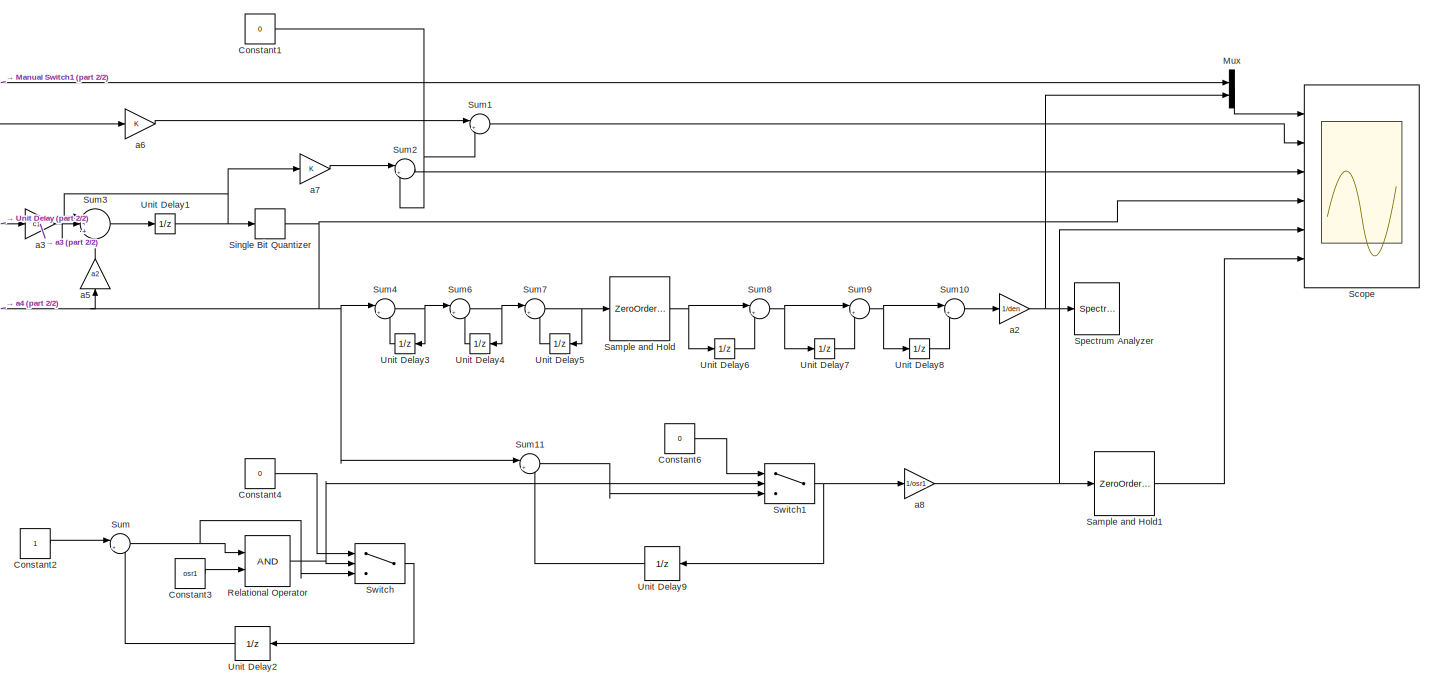
[diagram: root canvas - part 1/2, most of the canvas]
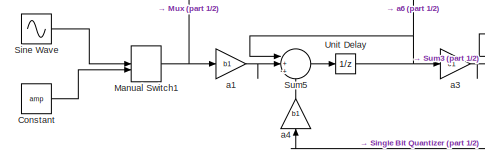
[diagram: root canvas - part 2/2, middle left region]
MODEL slx_04961e303b5b
KIND model
BLOCK [Constant] Constant
  SampleTime = 1/fs
  Value = amp
BLOCK [Constant] Constant1
  SampleTime = 1/fs
  Value = 0
BLOCK [Constant] Constant2
  SampleTime = 1/fs
BLOCK [Constant] Constant3
  SampleTime = 1/fs
  Value = osr1
BLOCK [Constant] Constant4
  SampleTime = 1/fs
  Value = 0
BLOCK [Constant] Constant6
  SampleTime = 1/fs
  Value = 0
BLOCK [ManualSwitch] Manual Switch1
  CurrentSetting = 0
BLOCK [Mux] Mux
  DisplayOption = bar
  Inputs = 2
  Ports = [2, 1]
BLOCK [RelationalOperator] Relational Operator
  InputSameDT = off
  OutDataTypeStr = boolean
  Ports = [2, 1]
  SampleTime = 1/fs
BLOCK [ZeroOrderHold] Sample and Hold
  SampleTime = osr/fs
BLOCK [ZeroOrderHold] Sample and Hold1
  SampleTime = osr1/fs
BLOCK [Scope] Scope
  DataFormat = StructureWithTime
  Floating = off
  LimitDataPoints = off
  MaxDataPoints = 20000
  NumInputPorts = 6
  Ports = [6]
  SampleTime = 0
  ShowLegends = off
  TimeRange = 0.09
  YMax = 0.01001~0.6~0.2~1.5~4.5e-08~1.5
  YMin = 0.00999~-0.2~-0.2~-1.5~2.5e-08~-0.5
BLOCK [Sin] Sine Wave
  Amplitude = amp
  Frequency = 2*pi*fin
  Ports = [0, 1]
  SampleTime = 1/fs
BLOCK [Signum] Single Bit Quantizer
  SampleTime = 1/fs
BLOCK [SpectrumAnalyzer] Spectrum Analyzer
  CloseFcn = scopeextensions.ScopeBlock.callback(gcbh, 'onBlockClose');
  CopyFcn = scopeextensions.ScopeBlock.onCoreBlockCopy(gcbh);
  DeleteFcn = scopeextensions.ScopeBlock.callback(gcbh, 'onBlockDelete');
  DestroyFcn = scopeextensions.ScopeBlock.onBlockDestroy(gcbh)
  NameChangeFcn = scopeextensions.ScopeBlock.callback(gcbh, 'onBlockRename');
  Ports = [1]
  PreDeleteFcn = scopeextensions.ScopeBlock.callback(gcbh, 'onBlockPreDelete');
  PreSaveFcn = scopeextensions.ScopeBlock.callback(gcbh, 'onModelSave');
BLOCK [Sum] Sum
  IconShape = round
  InputSameDT = off
  Inputs = |++
  OutDataTypeStr = Inherit: Inherit via internal rule
  Ports = [2, 1]
  SampleTime = 1/fs
  SaturateOnIntegerOverflow = off
BLOCK [Sum] Sum1
  AccumDataTypeStr = double
  IconShape = round
  InputSameDT = off
  Inputs = |++
  OutDataTypeStr = Inherit: Inherit via internal rule
  Ports = [2, 1]
  SampleTime = 1/fs
  SaturateOnIntegerOverflow = off
BLOCK [Sum] Sum10
  AccumDataTypeStr = double
  IconShape = round
  InputSameDT = off
  Inputs = |+-
  OutDataTypeStr = Inherit: Inherit via internal rule
  Ports = [2, 1]
  SampleTime = osr/fs
  SaturateOnIntegerOverflow = off
BLOCK [Sum] Sum11
  IconShape = round
  InputSameDT = off
  Inputs = |++
  OutDataTypeStr = Inherit: Inherit via internal rule
  Ports = [2, 1]
  SampleTime = 1/fs
  SaturateOnIntegerOverflow = off
BLOCK [Sum] Sum2
  AccumDataTypeStr = double
  IconShape = round
  InputSameDT = off
  Inputs = |++
  OutDataTypeStr = Inherit: Inherit via internal rule
  Ports = [2, 1]
  SampleTime = 1/fs
  SaturateOnIntegerOverflow = off
BLOCK [Sum] Sum3
  AccumDataTypeStr = double
  IconShape = round
  InputSameDT = off
  Inputs = |++-
  OutDataTypeStr = Inherit: Inherit via internal rule
  Ports = [3, 1]
  SampleTime = 1/fs
  SaturateOnIntegerOverflow = off
BLOCK [Sum] Sum4
  AccumDataTypeStr = double
  IconShape = round
  InputSameDT = off
  Inputs = |++
  OutDataTypeStr = Inherit: Inherit via internal rule
  Ports = [2, 1]
  SampleTime = 1/fs
  SaturateOnIntegerOverflow = off
BLOCK [Sum] Sum5
  AccumDataTypeStr = double
  IconShape = round
  InputSameDT = off
  Inputs = |++-
  OutDataTypeStr = Inherit: Inherit via internal rule
  Ports = [3, 1]
  SampleTime = 1/fs
  SaturateOnIntegerOverflow = off
BLOCK [Sum] Sum6
  AccumDataTypeStr = double
  IconShape = round
  InputSameDT = off
  Inputs = |++
  OutDataTypeStr = Inherit: Inherit via internal rule
  Ports = [2, 1]
  SampleTime = 1/fs
  SaturateOnIntegerOverflow = off
BLOCK [Sum] Sum7
  AccumDataTypeStr = double
  IconShape = round
  InputSameDT = off
  Inputs = |++
  OutDataTypeStr = Inherit: Inherit via internal rule
  Ports = [2, 1]
  SampleTime = 1/fs
  SaturateOnIntegerOverflow = off
BLOCK [Sum] Sum8
  AccumDataTypeStr = double
  IconShape = round
  InputSameDT = off
  Inputs = |+-
  OutDataTypeStr = Inherit: Inherit via internal rule
  Ports = [2, 1]
  SampleTime = osr/fs
  SaturateOnIntegerOverflow = off
BLOCK [Sum] Sum9
  AccumDataTypeStr = double
  IconShape = round
  InputSameDT = off
  Inputs = |+-
  OutDataTypeStr = Inherit: Inherit via internal rule
  Ports = [2, 1]
  SampleTime = osr/fs
  SaturateOnIntegerOverflow = off
BLOCK [Switch] Switch
  InputSameDT = off
  SampleTime = 1/fs
  SaturateOnIntegerOverflow = off
BLOCK [Switch] Switch1
  InputSameDT = off
  SampleTime = 1/fs
  SaturateOnIntegerOverflow = off
BLOCK [UnitDelay] Unit Delay
  SampleTime = 1/fs
BLOCK [UnitDelay] Unit Delay1
  SampleTime = 1/fs
BLOCK [UnitDelay] Unit Delay2
  InputProcessing = Elements as channels (sample based)
  SampleTime = 1/fs
BLOCK [UnitDelay] Unit Delay3
  SampleTime = 1/fs
BLOCK [UnitDelay] Unit Delay4
  SampleTime = 1/fs
BLOCK [UnitDelay] Unit Delay5
  SampleTime = 1/fs
BLOCK [UnitDelay] Unit Delay6
  SampleTime = osr/fs
BLOCK [UnitDelay] Unit Delay7
  SampleTime = osr/fs
BLOCK [UnitDelay] Unit Delay8
  SampleTime = osr/fs
BLOCK [UnitDelay] Unit Delay9
  InputProcessing = Elements as channels (sample based)
  SampleTime = 1/fs
BLOCK [Gain] a1
  Gain = b1
  OutDataTypeStr = Inherit: Inherit via internal rule
  ParamDataTypeStr = Inherit: Inherit via internal rule
  SampleTime = 1/fs
  SaturateOnIntegerOverflow = off
BLOCK [Gain] a2
  Gain = 1/den
  OutDataTypeStr = Inherit: Inherit via internal rule
  ParamDataTypeStr = Inherit: Inherit via internal rule
  SampleTime = osr/fs
  SaturateOnIntegerOverflow = off
BLOCK [Gain] a3
  Gain = c1
  OutDataTypeStr = Inherit: Inherit via internal rule
  ParamDataTypeStr = Inherit: Inherit via internal rule
  SampleTime = 1/fs
  SaturateOnIntegerOverflow = off
BLOCK [Gain] a4
  Gain = b1
  OutDataTypeStr = Inherit: Inherit via internal rule
  ParamDataTypeStr = Inherit: Inherit via internal rule
  SampleTime = 1/fs
  SaturateOnIntegerOverflow = off
BLOCK [Gain] a5
  Gain = a2
  OutDataTypeStr = Inherit: Inherit via internal rule
  ParamDataTypeStr = Inherit: Inherit via internal rule
  SampleTime = 1/fs
  SaturateOnIntegerOverflow = off
BLOCK [Gain] a6
  OutDataTypeStr = Inherit: Inherit via internal rule
  ParamDataTypeStr = Inherit: Inherit via internal rule
  SampleTime = 1/fs
  SaturateOnIntegerOverflow = off
BLOCK [Gain] a7
  OutDataTypeStr = Inherit: Inherit via internal rule
  ParamDataTypeStr = Inherit: Inherit via internal rule
  SampleTime = 1/fs
  SaturateOnIntegerOverflow = off
BLOCK [Gain] a8
  Gain = 1/osr1
  OutDataTypeStr = Inherit: Inherit via internal rule
  ParamDataTypeStr = Inherit: Inherit via internal rule
  SampleTime = 1/fs
  SaturateOnIntegerOverflow = off
NET Constant1:1 -> Sum1:2, Sum2:2
LINE Constant2:1 -> Sum:1
LINE Constant3:1 -> Relational Operator:2
LINE Constant4:1 -> Switch:1
LINE Constant6:1 -> Switch1:1
LINE Constant:1 -> Manual Switch1:2
NET Manual Switch1:1 -> Mux:1, a1:1
LINE Mux:1 -> Scope:1
NET Relational Operator:1 -> Switch1:2, Switch:2
LINE Sample and Hold1:1 -> Scope:6
NET Sample and Hold:1 -> Sum8:1, Unit Delay6:1
LINE Sine Wave:1 -> Manual Switch1:1
NET Single Bit Quantizer:1 -> Scope:4, Sum11:1, Sum4:1, a4:1, a5:1
LINE Sum10:1 -> a2:1
LINE Sum11:1 -> Switch1:3
LINE Sum1:1 -> Scope:2
LINE Sum2:1 -> Scope:3
LINE Sum3:1 -> Unit Delay1:1
NET Sum4:1 -> Sum6:1, Unit Delay3:1
LINE Sum5:1 -> Unit Delay:1
NET Sum6:1 -> Sum7:1, Unit Delay4:1
NET Sum7:1 -> Sample and Hold:1, Unit Delay5:1
NET Sum8:1 -> Sum9:1, Unit Delay7:1
NET Sum9:1 -> Sum10:1, Unit Delay8:1
NET Sum:1 -> Relational Operator:1, Switch:3
NET Switch1:1 -> Unit Delay9:1, a8:1
LINE Switch:1 -> Unit Delay2:1
NET Unit Delay1:1 -> Single Bit Quantizer:1, Sum3:1, a7:1
LINE Unit Delay2:1 -> Sum:2
LINE Unit Delay3:1 -> Sum4:2
LINE Unit Delay4:1 -> Sum6:2
LINE Unit Delay5:1 -> Sum7:2
LINE Unit Delay6:1 -> Sum8:2
LINE Unit Delay7:1 -> Sum9:2
LINE Unit Delay8:1 -> Sum10:2
LINE Unit Delay9:1 -> Sum11:2
NET Unit Delay:1 -> Sum5:1, a3:1, a6:1
LINE a1:1 -> Sum5:2
NET a2:1 -> Mux:2, Spectrum Analyzer:1
LINE a3:1 -> Sum3:2
LINE a4:1 -> Sum5:3
LINE a5:1 -> Sum3:3
LINE a6:1 -> Sum1:1
LINE a7:1 -> Sum2:1
NET a8:1 -> Sample and Hold1:1, Scope:5
note: NET lines group one-source signal fan-out (src -> all destinations, sorted); 1:1 wires keep LINE
